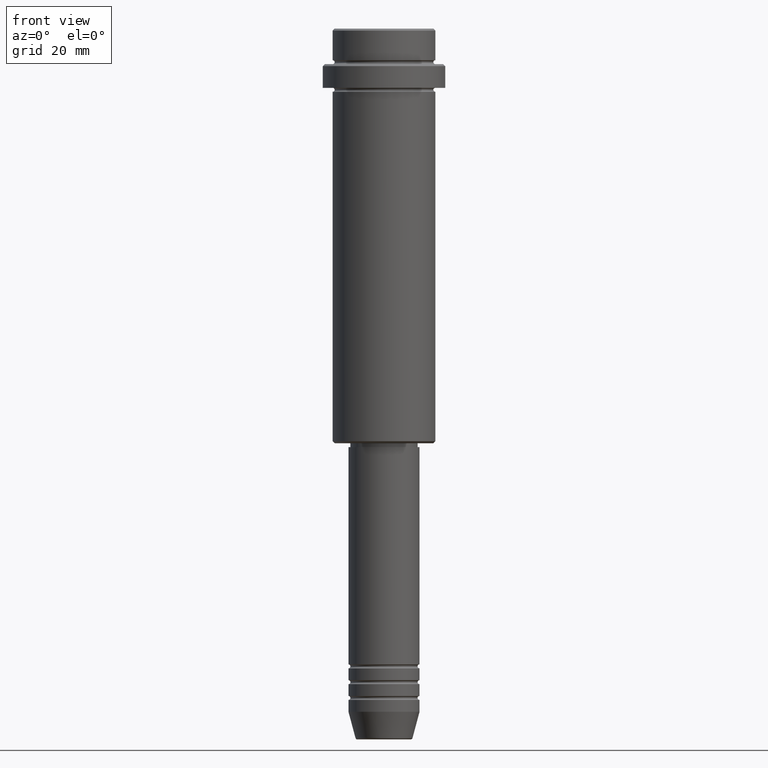
[diagram: clean part render]
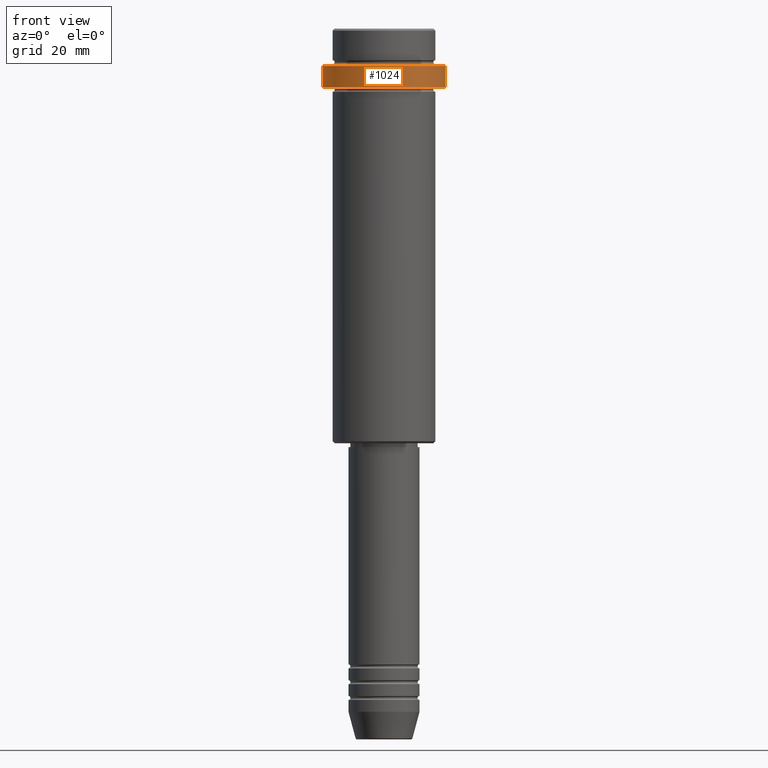
[diagram: same view with one face highlighted and labeled with its STEP entity id]
A machine part, front view. The second image highlights one B-rep face of the part: STEP entity #1024.
In plain terms, the highlighted cylindrical surface (partial cylindrical patch) has radius 15.5 mm, axis along (-0, -0, 1).
Its self-contained STEP definition (entity closure, byte-faithful):
#122 = AXIS2_PLACEMENT_3D ( 'NONE', #556, #1011, #1334 ) ;
#150 = AXIS2_PLACEMENT_3D ( 'NONE', #541, #461, #207 ) ;
#164 = LINE ( 'NONE', #1153, #962 ) ;
#207 = DIRECTION ( 'NONE',  ( 1.000000000000000000, 0.000000000000000000, 0.000000000000000000 ) ) ;
#228 = CARTESIAN_POINT ( 'NONE',  ( 15.50000000000000000, 0.000000000000000000, 0.000000000000000000 ) ) ;
#284 = FACE_OUTER_BOUND ( 'NONE', #705, .T. ) ;
#288 = CIRCLE ( 'NONE', #122, 15.50000000000000000 ) ;
#351 = VECTOR ( 'NONE', #1135, 1000.000000000000000 ) ;
#389 = EDGE_CURVE ( 'NONE', #1005, #1162, #567, .T. ) ;
#461 = DIRECTION ( 'NONE',  ( -0.000000000000000000, -0.000000000000000000, 1.000000000000000000 ) ) ;
#479 = EDGE_CURVE ( 'NONE', #1162, #1133, #288, .T. ) ;
#490 = CIRCLE ( 'NONE', #150, 15.50000000000000000 ) ;
#499 = CARTESIAN_POINT ( 'NONE',  ( 0.000000000000000000, 0.000000000000000000, 0.000000000000000000 ) ) ;
#541 = CARTESIAN_POINT ( 'NONE',  ( 0.000000000000000000, 0.000000000000000000, -14.99999999999998757 ) ) ;
#556 = CARTESIAN_POINT ( 'NONE',  ( 0.000000000000000000, 0.000000000000000000, -9.500000000000026645 ) ) ;
#567 = LINE ( 'NONE', #228, #351 ) ;
#575 = ORIENTED_EDGE ( 'NONE', *, *, #389, .T. ) ;
#599 = DIRECTION ( 'NONE',  ( -0.000000000000000000, -0.000000000000000000, 1.000000000000000000 ) ) ;
#702 = EDGE_CURVE ( 'NONE', #863, #1133, #164, .T. ) ;
#705 = EDGE_LOOP ( 'NONE', ( #1310, #1297, #575, #1151 ) ) ;
#820 = CYLINDRICAL_SURFACE ( 'NONE', #1298, 15.50000000000000000 ) ;
#858 = CARTESIAN_POINT ( 'NONE',  ( 15.50000000000000000, 0.000000000000000000, -9.500000000000026645 ) ) ;
#863 = VERTEX_POINT ( 'NONE', #1157 ) ;
#931 = DIRECTION ( 'NONE',  ( -0.000000000000000000, -0.000000000000000000, 1.000000000000000000 ) ) ;
#950 = DIRECTION ( 'NONE',  ( 1.000000000000000000, 0.000000000000000000, 0.000000000000000000 ) ) ;
#962 = VECTOR ( 'NONE', #599, 1000.000000000000000 ) ;
#977 = CARTESIAN_POINT ( 'NONE',  ( -15.50000000000000000, 1.898202538678397557E-15, -9.500000000000026645 ) ) ;
#1005 = VERTEX_POINT ( 'NONE', #1163 ) ;
#1011 = DIRECTION ( 'NONE',  ( 0.000000000000000000, 0.000000000000000000, -1.000000000000000000 ) ) ;
#1024 = ADVANCED_FACE ( 'NONE', ( #284 ), #820, .T. ) ;
#1133 = VERTEX_POINT ( 'NONE', #977 ) ;
#1135 = DIRECTION ( 'NONE',  ( -0.000000000000000000, -0.000000000000000000, 1.000000000000000000 ) ) ;
#1151 = ORIENTED_EDGE ( 'NONE', *, *, #479, .T. ) ;
#1153 = CARTESIAN_POINT ( 'NONE',  ( -15.50000000000000000, 1.898202538678397557E-15, 0.000000000000000000 ) ) ;
#1157 = CARTESIAN_POINT ( 'NONE',  ( -15.50000000000000000, 1.898202538678397557E-15, -14.99999999999998757 ) ) ;
#1162 = VERTEX_POINT ( 'NONE', #858 ) ;
#1163 = CARTESIAN_POINT ( 'NONE',  ( 15.50000000000000000, 0.000000000000000000, -14.99999999999998757 ) ) ;
#1297 = ORIENTED_EDGE ( 'NONE', *, *, #1392, .T. ) ;
#1298 = AXIS2_PLACEMENT_3D ( 'NONE', #499, #931, #950 ) ;
#1310 = ORIENTED_EDGE ( 'NONE', *, *, #702, .F. ) ;
#1334 = DIRECTION ( 'NONE',  ( 1.000000000000000000, 0.000000000000000000, 0.000000000000000000 ) ) ;
#1392 = EDGE_CURVE ( 'NONE', #863, #1005, #490, .T. ) ;